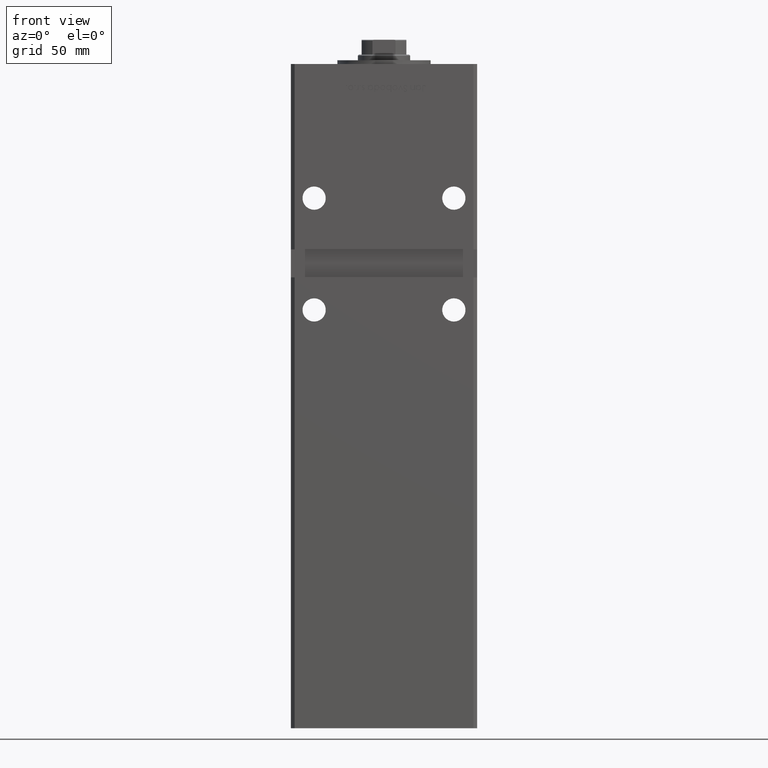
[diagram: clean part render]
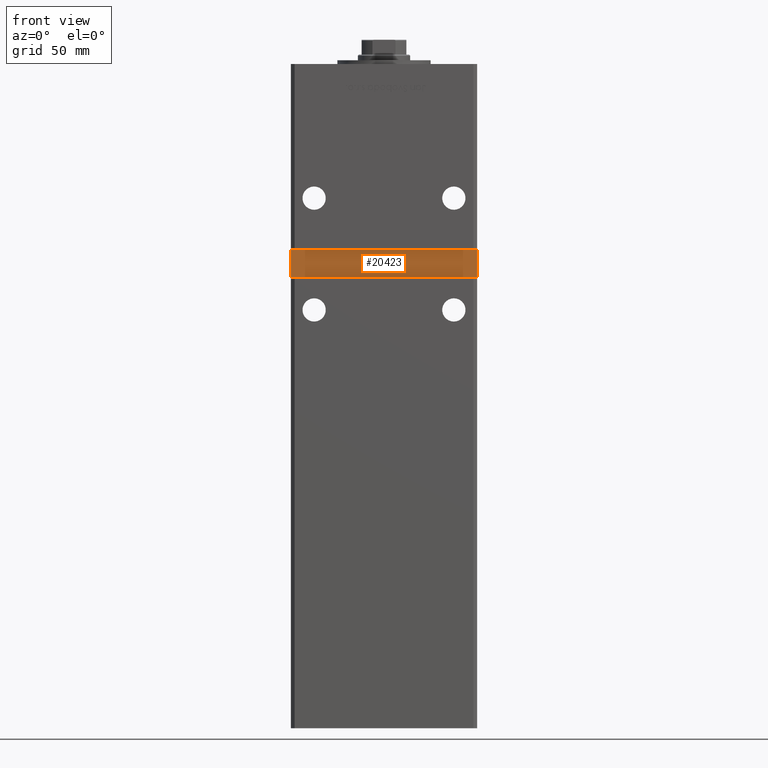
[diagram: same view with one face highlighted and labeled with its STEP entity id]
A machine part, front view. The second image highlights one B-rep face of the part: STEP entity #20423.
In plain terms, the highlighted planar face has unit normal (0, -1, 0).
Its self-contained STEP definition (entity closure, byte-faithful):
#785 = LINE ( 'NONE', #13654, #7172 ) ;
#829 = DIRECTION ( 'NONE',  ( 1.000000000000000000, 0.000000000000000000, 0.000000000000000000 ) ) ;
#1921 = EDGE_CURVE ( 'NONE', #38203, #16488, #42446, .T. ) ;
#2306 = CARTESIAN_POINT ( 'NONE',  ( 0.000000000000000000, -38.50000000000000000, 0.000000000000000000 ) ) ;
#4465 = CARTESIAN_POINT ( 'NONE',  ( 49.99999999999998579, -38.49999999999999289, 223.0000000000000000 ) ) ;
#6256 = VECTOR ( 'NONE', #29841, 1000.000000000000000 ) ;
#7172 = VECTOR ( 'NONE', #21468, 1000.000000000000000 ) ;
#8805 = CARTESIAN_POINT ( 'NONE',  ( -49.99999999999998579, -38.50000000000000000, 223.0000000000000000 ) ) ;
#9282 = ORIENTED_EDGE ( 'NONE', *, *, #1921, .T. ) ;
#9418 = VERTEX_POINT ( 'NONE', #52088 ) ;
#12654 = CARTESIAN_POINT ( 'NONE',  ( -49.99999999999998579, -38.50000000000000000, 223.0000000000000000 ) ) ;
#13654 = CARTESIAN_POINT ( 'NONE',  ( 50.00000000000000000, -38.50000000000000000, 238.0000000000000284 ) ) ;
#14961 = EDGE_LOOP ( 'NONE', ( #43088, #29133, #35273, #9282 ) ) ;
#16488 = VERTEX_POINT ( 'NONE', #4465 ) ;
#17483 = LINE ( 'NONE', #30625, #6256 ) ;
#18425 = VERTEX_POINT ( 'NONE', #37685 ) ;
#19232 = DIRECTION ( 'NONE',  ( 0.000000000000000000, 0.000000000000000000, -1.000000000000000000 ) ) ;
#20423 = ADVANCED_FACE ( 'NONE', ( #47450 ), #42881, .T. ) ;
#21468 = DIRECTION ( 'NONE',  ( 4.625929269271481969E-16, -0.000000000000000000, 1.000000000000000000 ) ) ;
#22235 = EDGE_CURVE ( 'NONE', #9418, #18425, #41269, .T. ) ;
#23814 = CARTESIAN_POINT ( 'NONE',  ( -49.99999999999998579, -38.50000000000000000, 238.0000000000000284 ) ) ;
#29133 = ORIENTED_EDGE ( 'NONE', *, *, #22235, .T. ) ;
#29841 = DIRECTION ( 'NONE',  ( 0.000000000000000000, 0.000000000000000000, -1.000000000000000000 ) ) ;
#30625 = CARTESIAN_POINT ( 'NONE',  ( -49.99999999999998579, -38.50000000000000000, 238.0000000000000284 ) ) ;
#35273 = ORIENTED_EDGE ( 'NONE', *, *, #43013, .T. ) ;
#36437 = DIRECTION ( 'NONE',  ( -1.000000000000000000, -0.000000000000000000, -0.000000000000000000 ) ) ;
#37685 = CARTESIAN_POINT ( 'NONE',  ( -49.99999999999998579, -38.50000000000000000, 238.0000000000000284 ) ) ;
#38203 = VERTEX_POINT ( 'NONE', #8805 ) ;
#41269 = LINE ( 'NONE', #23814, #49595 ) ;
#41846 = VECTOR ( 'NONE', #829, 1000.000000000000000 ) ;
#42446 = LINE ( 'NONE', #12654, #41846 ) ;
#42881 = PLANE ( 'NONE',  #49530 ) ;
#43013 = EDGE_CURVE ( 'NONE', #18425, #38203, #17483, .T. ) ;
#43088 = ORIENTED_EDGE ( 'NONE', *, *, #45052, .T. ) ;
#45052 = EDGE_CURVE ( 'NONE', #16488, #9418, #785, .T. ) ;
#47450 = FACE_OUTER_BOUND ( 'NONE', #14961, .T. ) ;
#49530 = AXIS2_PLACEMENT_3D ( 'NONE', #2306, #50960, #19232 ) ;
#49595 = VECTOR ( 'NONE', #36437, 1000.000000000000000 ) ;
#50960 = DIRECTION ( 'NONE',  ( 0.000000000000000000, -1.000000000000000000, 0.000000000000000000 ) ) ;
#52088 = CARTESIAN_POINT ( 'NONE',  ( 50.00000000000000000, -38.50000000000000000, 238.0000000000000284 ) ) ;